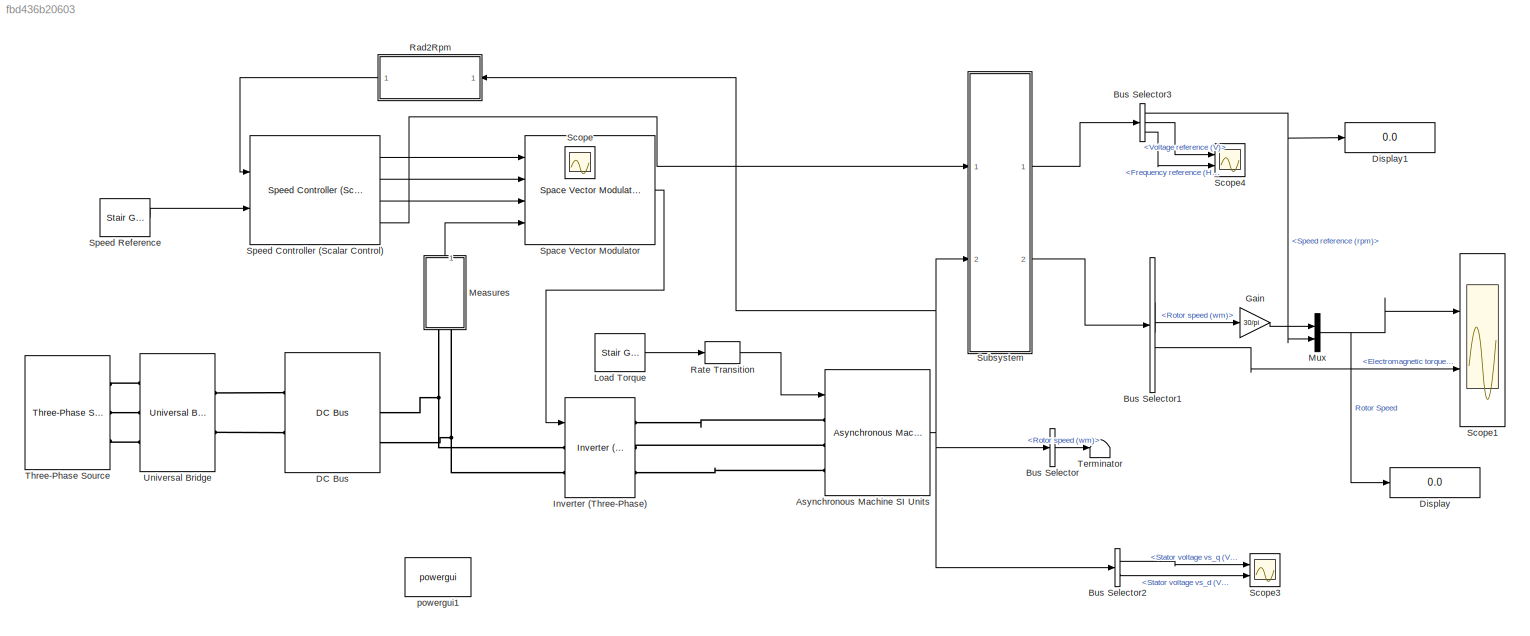
MODEL slx_fbd436b20603
KIND model
CONFIG AbsTol = auto
CONFIG FixedStep = auto
CONFIG MaxStep = auto
CONFIG MinStep = auto
CONFIG RelTol = 1e-3
CONFIG SampleTimeConstraint = Unconstrained
CONFIG Solver = FixedStepDiscrete
CONFIG SolverMode = Auto
CONFIG SolverName = FixedStepDiscrete
CONFIG StartTime = 0.0
CONFIG StopTime = 3
BLOCK [Reference] Asynchronous Machine SI Units  REF=powerlib/Machines/Asynchronous Machine
SI Units
  Ports = [1, 1, 0, 0, 0, 3]
  SourceBlock = powerlib/Machines/Asynchronous Machine\nSI Units
  SourceType = Asynchronous Machine
BLOCK [BusSelector] Bus Selector
  OutputSignals = Mechanical.Rotor speed (wm)
  Ports = [1, 1]
BLOCK [BusSelector] Bus Selector1
  OutputSignals = Mechanical.Rotor speed (wm),Mechanical.Electromagnetic torque Te (N*m)
  Ports = [1, 2]
BLOCK [BusSelector] Bus Selector2
  OutputSignals = Stator measurements.Stator voltage vs_q (V),Stator measurements.Stator voltage vs_d (V)
  Ports = [1, 2]
BLOCK [BusSelector] Bus Selector3
  OutputSignals = Speed reference (rpm),Voltage reference (V),Frequency reference (Hz)
  Ports = [1, 3]
BLOCK [Reference] DC Bus  REF=spsDrivesDcBusModel/DC Bus

  Ports = [0, 1, 0, 0, 0, 2, 2]
  SourceBlock = spsDrivesDcBusModel/DC Bus
  SourceType = DC Bus
BLOCK [Display] Display
  Decimation = 1
  Ports = [1]
BLOCK [Display] Display1
  Decimation = 1
  Ports = [1]
BLOCK [Gain] Gain
  Gain = 30/pi
  OutDataTypeStr = Inherit: Inherit via internal rule
  ParamDataTypeStr = Inherit: Inherit via internal rule
  SaturateOnIntegerOverflow = off
BLOCK [Reference] Inverter (Three-Phase)  REF=electricdrivelib/Fundamental Drive Blocks/Inverter
(Three-Phase)
  AttributesFormatString = %<BlockChoice>
  Ports = [1, 0, 0, 0, 0, 2, 3]
  SourceBlock = electricdrivelib/Fundamental Drive Blocks/Inverter\n(Three-Phase)
  SourceType = Inverter (Three-phase)
BLOCK [Reference] Load Torque  REF=powerlib_meascontrol/Pulse & Signal
Generators/Stair
Generator
  Ports = [0, 1]
  SourceBlock = powerlib_meascontrol/Pulse & Signal\nGenerators/Stair\nGenerator
  SourceType = Stair Generator
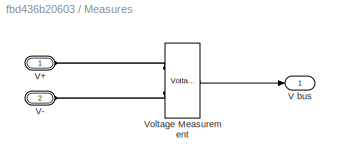
BLOCK [SubSystem] Measures
  Ports = [0, 1, 0, 0, 0, 2]
  RequestExecContextInheritance = off
  Variant = off
BLOCK [Outport] Measures/V bus
  IconDisplay = Port number
BLOCK [PMIOPort] Measures/V+
  Port = 1
  Side = Left
BLOCK [PMIOPort] Measures/V-
  Port = 2
  Side = Left
BLOCK [Reference] Measures/Voltage Measurement  REF=powerlib/Measurements/Voltage Measurement
  Ports = [0, 1, 0, 0, 0, 2]
  SourceBlock = powerlib/Measurements/Voltage Measurement
  SourceType = Voltage Measurement
  UserDataPersistent = on
BLOCK [Mux] Mux
  DisplayOption = bar
  Inputs = 2
  Ports = [2, 1]
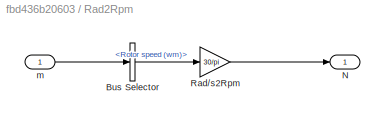
BLOCK [SubSystem] Rad2Rpm
  Ports = [1, 1]
  RequestExecContextInheritance = off
  Variant = off
BLOCK [BusSelector] Rad2Rpm/Bus Selector
  OutputSignals = Mechanical.Rotor speed (wm)
  Ports = [1, 1]
BLOCK [Outport] Rad2Rpm/N
  IconDisplay = Port number
BLOCK [Gain] Rad2Rpm/Rad//s2Rpm
  Gain = 30/pi
  OutDataTypeStr = Inherit: Inherit via internal rule
  ParamDataTypeStr = Inherit: Inherit via internal rule
  SaturateOnIntegerOverflow = off
BLOCK [Inport] Rad2Rpm/m
  IconDisplay = Port number
BLOCK [RateTransition] Rate Transition
  OutPortSampleTime = 2e-06
BLOCK [Scope] Scope
  IOType = viewer
  Ports = []
  ScopeSpecificationString = Simulink.scopes.TimeScopeBlockCfg('CurrentConfiguration', extmgr.ConfigurationSet(extmgr.Configuration('Core','General UI',true),extmgr.Configuration('Core','Source UI',true),extmgr.Configuration('Sources','WiredSimulink',true),extmgr.Configuration('Visuals','Time Domain',true),extmgr.Configuration('Tools','Plot Navigation',true),extmgr.Configuration('Tools','Measurements',true,'Version','2016a'))...<+19ch>
BLOCK [Scope] Scope1
  NumInputPorts = 2
  Ports = [2]
  ScopeSpecificationString = Simulink.scopes.TimeScopeBlockCfg('CurrentConfiguration', extmgr.ConfigurationSet(extmgr.Configuration('Core','General UI',true),extmgr.Configuration('Core','Source UI',true),extmgr.Configuration('Sources','WiredSimulink',true,'DataLoggingVariableName','ScopeData1'),extmgr.Configuration('Visuals','Time Domain',true,'SerializedDisplays',{struct('MinYLimReal','-233.73581','MaxYLimReal','1650.5068','...<+2304ch>
BLOCK [Scope] Scope3
  NumInputPorts = 2
  Ports = [2]
  ScopeSpecificationString = Simulink.scopes.TimeScopeBlockCfg('CurrentConfiguration', extmgr.ConfigurationSet(extmgr.Configuration('Core','General UI',true),extmgr.Configuration('Core','Source UI',true),extmgr.Configuration('Sources','WiredSimulink',true,'DataLoggingVariableName','ScopeData2'),extmgr.Configuration('Visuals','Time Domain',true,'SerializedDisplays',{struct('MinYLimReal','-265.41533','MaxYLimReal','333.07074','...<+1471ch>
BLOCK [Scope] Scope4
  NumInputPorts = 2
  Ports = [2]
  ScopeSpecificationString = Simulink.scopes.TimeScopeBlockCfg('CurrentConfiguration', extmgr.ConfigurationSet(extmgr.Configuration('Core','General UI',true),extmgr.Configuration('Core','Source UI',true),extmgr.Configuration('Sources','WiredSimulink',true,'DataLoggingVariableName','ScopeData3'),extmgr.Configuration('Visuals','Time Domain',true,'SerializedDisplays',{struct('MinYLimReal','-22.37147','MaxYLimReal','201.34324','Y...<+1444ch>
BLOCK [Reference] Space Vector Modulator  REF=electricdrivelib/Fundamental Drive Blocks/Space Vector Modulator
  AttributesFormatString = %<BlockChoice>
  Ports = [4, 1]
  SourceBlock = electricdrivelib/Fundamental Drive Blocks/Space Vector Modulator
  SourceType = Space Vector Modulator
BLOCK [Reference] Speed Controller (Scalar Control)  REF=electricdrivelib/Fundamental Drive Blocks/Speed Controller
(Scalar Control)
  Ports = [2, 4]
  SourceBlock = electricdrivelib/Fundamental Drive Blocks/Speed Controller\n(Scalar Control)
  SourceType = Speed Controller (Scalar Control)
BLOCK [Reference] Speed Reference  REF=powerlib_meascontrol/Pulse & Signal
Generators/Stair
Generator
  Ports = [0, 1]
  SourceBlock = powerlib_meascontrol/Pulse & Signal\nGenerators/Stair\nGenerator
  SourceType = Stair Generator
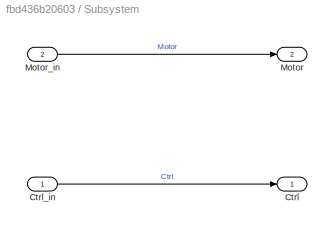
BLOCK [SubSystem] Subsystem
  Ports = [2, 2]
  RequestExecContextInheritance = off
  Variant = off
BLOCK [Outport] Subsystem/Ctrl
  IconDisplay = Port number
BLOCK [Inport] Subsystem/Ctrl_in
  IconDisplay = Port number
BLOCK [Outport] Subsystem/Motor
  IconDisplay = Port number
  Port = 2
BLOCK [Inport] Subsystem/Motor_in
  IconDisplay = Port number
  Port = 2
BLOCK [Terminator] Terminator
BLOCK [Reference] Three-Phase Source  REF=powerlib/Electrical
Sources/Three-Phase Source
  Ports = [0, 0, 0, 0, 0, 0, 3]
  SourceBlock = powerlib/Electrical\nSources/Three-Phase Source
  SourceType = Three-Phase Source
BLOCK [Reference] Universal Bridge  REF=powerlib/Power
Electronics/Universal Bridge
  Ports = [0, 0, 0, 0, 0, 3, 2]
  SourceBlock = powerlib/Power\nElectronics/Universal Bridge
  SourceType = Universal Bridge
BLOCK [Reference] powergui1  REF=powerlib/powergui
  Ports = []
  Priority = 1
  SourceBlock = powerlib/powergui
  SourceType = PSB option menu block
  UserDataPersistent = on
NET Asynchronous Machine SI Units:1 -> Bus Selector2:1, Bus Selector:1, Rad2Rpm:1, Subsystem:2
LINE Bus Selector1:1 -> Gain:1
LINE Bus Selector1:2 -> Scope1:2
LINE Bus Selector2:1 -> Scope3:1
LINE Bus Selector2:2 -> Scope3:2
NET Bus Selector3:1 -> Display1:1, Mux:2
LINE Bus Selector3:2 -> Scope4:1
LINE Bus Selector3:3 -> Scope4:2
LINE Bus Selector:1 -> Terminator:1
LINE Gain:1 -> Mux:1
LINE Load Torque:1 -> Rate Transition:1
LINE Measures/Voltage Measurement:1 -> Measures/V bus:1
LINE Measures:1 -> Space Vector Modulator:4
NET Mux:1 -> Display:1, Scope1:1
LINE Rad2Rpm/Bus Selector:1 -> Rad2Rpm/Rad//s2Rpm:1
LINE Rad2Rpm/Rad//s2Rpm:1 -> Rad2Rpm/N:1
LINE Rad2Rpm/m:1 -> Rad2Rpm/Bus Selector:1
LINE Rad2Rpm:1 -> Speed Controller (Scalar Control):1
LINE Rate Transition:1 -> Asynchronous Machine SI Units:1
LINE Space Vector Modulator:1 -> Inverter (Three-Phase):1
LINE Speed Controller (Scalar Control):1 -> Space Vector Modulator:1
LINE Speed Controller (Scalar Control):2 -> Space Vector Modulator:2
LINE Speed Controller (Scalar Control):3 -> Space Vector Modulator:3
LINE Speed Controller (Scalar Control):4 -> Subsystem:1
LINE Speed Reference:1 -> Speed Controller (Scalar Control):2
LINE Subsystem/Ctrl_in:1 -> Subsystem/Ctrl:1
LINE Subsystem/Motor_in:1 -> Subsystem/Motor:1
LINE Subsystem:1 -> Bus Selector3:1
LINE Subsystem:2 -> Bus Selector1:1
PLINE Asynchronous Machine SI Units:LConn1 -- Inverter (Three-Phase):RConn1
PLINE Asynchronous Machine SI Units:LConn2 -- Inverter (Three-Phase):RConn2
PLINE Asynchronous Machine SI Units:LConn3 -- Inverter (Three-Phase):RConn3
PLINE DC Bus:LConn1 -- Universal Bridge:RConn1
PLINE DC Bus:LConn2 -- Universal Bridge:RConn2
PNET net1: DC Bus:RConn1 -- Inverter (Three-Phase):LConn1 -- Measures:LConn1
PNET net2: DC Bus:RConn2 -- Inverter (Three-Phase):LConn2 -- Measures:LConn2
PLINE Measures/V+:RConn1 -- Measures/Voltage Measurement:LConn1
PLINE Measures/V-:RConn1 -- Measures/Voltage Measurement:LConn2
PLINE Three-Phase Source:RConn1 -- Universal Bridge:LConn1
PLINE Three-Phase Source:RConn2 -- Universal Bridge:LConn2
PLINE Three-Phase Source:RConn3 -- Universal Bridge:LConn3
note: NET lines group one-source signal fan-out (src -> all destinations, sorted); 1:1 wires keep LINE; PNET lines group multi-terminal physical nets as a canonical sorted terminal list (undirected conserving connections); 2-terminal nets keep the pairwise PLINE form
